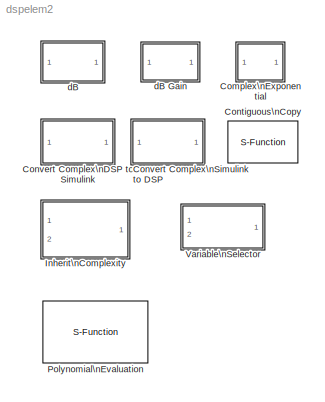
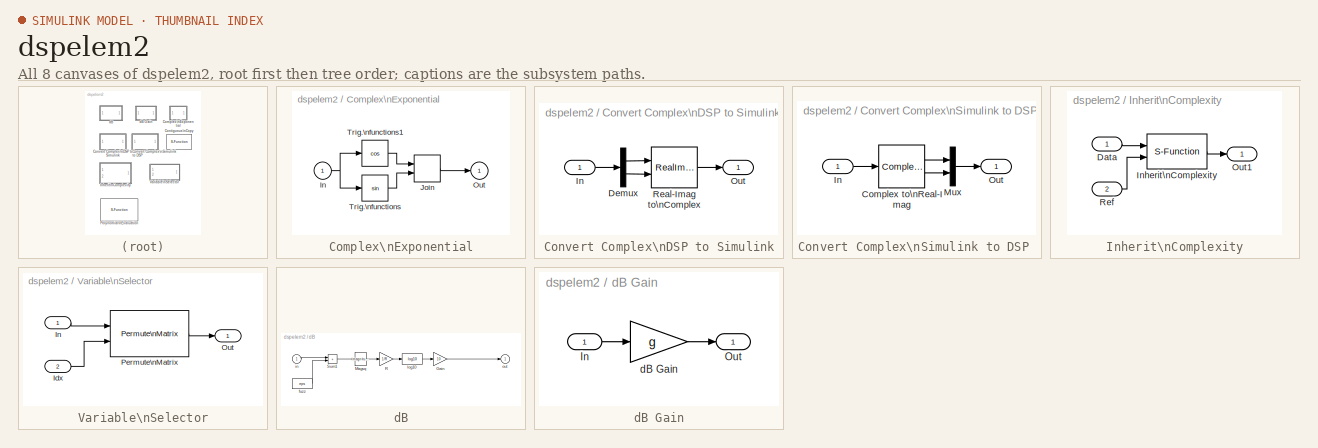
[diagram: thumbnail index - all 8 canvases of the model, root first then tree order]
MODEL dspelem2
KIND library
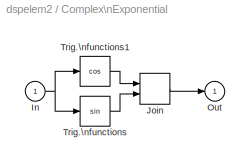
BLOCK [SubSystem] Complex\nExponential
  MaskDescription = Compute the complex exponential function of real inputs via\nEuler's formula, y = cos(x)+jsin(x).
  MaskDisplay = text(0.2, 0.55,'exp(jx)');
  MaskHelp = web(dspbhelp);
  MaskIconFrame = on
  MaskIconOpaque = on
  MaskIconRotate = none
  MaskIconUnits = normalized
  MaskType = Complex Exponential
  Ports = [1, 1, 0, 0, 0]
  ShowPortLabels = on
BLOCK [Inport] Complex\nExponential/In
  DataType = auto
  Interpolate = on
  Port = 1
  PortWidth = -1
  SampleTime = -1
  SignalType = auto
BLOCK [RealImagToComplex] Complex\nExponential/Join
  ConstantPart = 0
  Input = RealAndImag
  Ports = [2, 1, 0, 0, 0]
BLOCK [Outport] Complex\nExponential/Out
  InitialOutput = 0
  OutputWhenDisabled = held
  Port = 1
BLOCK [Trigonometry] Complex\nExponential/Trig.\nfunctions
  Operator = sin
  OutputSignalType = auto
  Ports = [1, 1, 0, 0, 0]
BLOCK [Trigonometry] Complex\nExponential/Trig.\nfunctions1
  Operator = cos
  OutputSignalType = auto
  Ports = [1, 1, 0, 0, 0]
BLOCK [S-Function] Contiguous\nCopy
  FunctionName = sdspcontig
  MaskDescription = Create a contiguous copy of input data.  For use with blocks that only accept contiguous data during simulation or code generation.
  MaskDisplay = disp('Contiguous\\nCopy');
  MaskHelp = web(dspbhelp);
  MaskIconFrame = on
  MaskIconOpaque = on
  MaskIconRotate = none
  MaskIconUnits = autoscale
  MaskType = Contiguous Copy
  PortCounts = []
  Ports = [1, 1, 0, 0, 0]
  SFunctionModules = ''
BLOCK [SubSystem] Convert Complex\nDSP to Simulink
  MaskDescription = Convert old DSP Blockset (prior to V3.0) complex data format to new Simulink complex data type.\n
  MaskDisplay = plot(x,y)\ntext(90,50,'Convert\\nComplex','horiz','right');
  MaskHelp = web(dspbhelp);
  MaskIconFrame = on
  MaskIconOpaque = on
  MaskIconRotate = none
  MaskIconUnits = autoscale
  MaskInitialization = [x,y]=cplxico2([],1);
  MaskType = Convert Complex DSP To Simulink
  Ports = [1, 1, 0, 0, 0]
  ShowPortLabels = on
BLOCK [Demux] Convert Complex\nDSP to Simulink/Demux
  Outputs = 2
  Ports = [1, 2, 0, 0, 0]
BLOCK [Inport] Convert Complex\nDSP to Simulink/In
  DataType = auto
  Interpolate = on
  Port = 1
  PortWidth = -1
  SampleTime = -1
  SignalType = auto
BLOCK [Outport] Convert Complex\nDSP to Simulink/Out
  InitialOutput = []
  OutputWhenDisabled = held
  Port = 1
BLOCK [RealImagToComplex] Convert Complex\nDSP to Simulink/Real-Imag to\nComplex
  ConstantPart = 0
  Input = RealAndImag
  Ports = [2, 1, 0, 0, 0]
BLOCK [SubSystem] Convert Complex\nSimulink to DSP 
  MaskDescription = Convert new Simulink complex data type to old DSP Blockset (prior to V3.0) complex data format.
  MaskDisplay = plot(x,y);\ntext(10,50,'Convert\\nComplex','horiz','left');
  MaskHelp = web(dspbhelp);
  MaskIconFrame = on
  MaskIconOpaque = on
  MaskIconRotate = none
  MaskIconUnits = autoscale
  MaskInitialization = [x,y]=cplxico2(1,[]);
  MaskType = Convert Complex Simulink to DSP
  Ports = [1, 1, 0, 0, 0]
  ShowPortLabels = on
BLOCK [ComplexToRealImag] Convert Complex\nSimulink to DSP /Complex to\nReal-Imag
  Output = RealAndImag
  Ports = [1, 2, 0, 0, 0]
BLOCK [Inport] Convert Complex\nSimulink to DSP /In
  DataType = auto
  Interpolate = on
  Port = 1
  PortWidth = -1
  SampleTime = -1
  SignalType = auto
BLOCK [Mux] Convert Complex\nSimulink to DSP /Mux
  DisplayOption = bar
  Inputs = 2
  Ports = [2, 1, 0, 0, 0]
BLOCK [Outport] Convert Complex\nSimulink to DSP /Out
  InitialOutput = []
  OutputWhenDisabled = held
  Port = 1
BLOCK [SubSystem] Inherit\nComplexity
  MaskDescription = Copy data from the Data input with the complexity of the reference signal. If the data is real and the reference is complex, an all zero imaginary part is created. If the data is complex and the reference is real, the imaginary part of the input is removed.
  MaskDisplay = text(.9,0.5,'Inherit\\nComplexity','horiz','right');
  MaskHelp = web(dspbhelp);
  MaskIconFrame = on
  MaskIconOpaque = off
  MaskIconRotate = none
  MaskIconUnits = normalized
  MaskType = Inherit Complexity
  Ports = [2, 1, 0, 0, 0]
  ShowPortLabels = on
BLOCK [Inport] Inherit\nComplexity/Data
  DataType = auto
  Interpolate = on
  Port = 1
  PortWidth = -1
  SampleTime = -1
  SignalType = auto
BLOCK [S-Function] Inherit\nComplexity/Inherit\nComplexity
  FunctionName = sdspihcplx
  PortCounts = []
  Ports = [2, 1, 0, 0, 0]
  SFunctionModules = ''
BLOCK [Outport] Inherit\nComplexity/Out1
  InitialOutput = []
  OutputWhenDisabled = held
  Port = 1
BLOCK [Inport] Inherit\nComplexity/Ref
  DataType = auto
  Interpolate = on
  Port = 2
  PortWidth = -1
  SampleTime = -1
  SignalType = auto
BLOCK [S-Function] Polynomial\nEvaluation
  FunctionName = sdsppolyval
  MaskCallbackString = dspblkpolyval|
  MaskDescription = Apply specified polynomial function to input.\n\nExample: [1 3 5] represents u^2 + 3u + 5.
  MaskDisplay = port_label(p.in1,   p.i1,  p.i1s);\nport_label(p.in2,   p.i2,  p.i2s);\nport_label(p.out, p.o1, p.o1s);\ndisp(xy.blklabel)
  MaskEnableString = on,off
  MaskHelp = web(dspbhelp);
  MaskIconFrame = on
  MaskIconOpaque = on
  MaskIconRotate = none
  MaskIconUnits = autoscale
  MaskInitialization = [p,xy] = dspblkpolyval('icon');
  MaskPromptString = Use constant coefficients|Constant coefficients:
  MaskSelfModifiable = on
  MaskStyleString = checkbox,edit
  MaskTunableValueString = on,on
  MaskType = Polynomial Evaluation
  MaskValueString = off|[5 4 3 2 1]
  MaskVariables = useConstCoeffs=@1;constCoeffs=@2;
  MaskVisibilityString = on,on
  Parameters = constCoeffs,useConstCoeffs
  PortCounts = []
  Ports = [2, 1, 0, 0, 0]
  SFunctionModules = ''
BLOCK [SubSystem] Variable\nSelector
  MaskCallbackString = dspblkvarsel;||
  MaskDescription = Select or re-order the specified elements of the input vector.\ny=u[Elements].\nElements may be constant (fixed), or may change throughout the simulation (variable).  Elements are 1-based indices, and do not need to be unique.
  MaskDisplay = disp('Selector')
  MaskEnableString = on,off,on
  MaskHelp = web(dspbhelp);
  MaskIconFrame = on
  MaskIconOpaque = off
  MaskIconRotate = none
  MaskIconUnits = autoscale
  MaskInitialization = dspblkvarsel('init');\n
  MaskPromptString = Selector mode:|Elements:|Invalid index:
  MaskSelfModifiable = on
  MaskStyleString = popup(Fixed|Variable),edit,popup(Clip Index|Clip and Warn|Generate Error)
  MaskTunableValueString = off,on,on
  MaskType = Variable Selector
  MaskValueString = Variable|[1 3]|Clip and Warn
  MaskVariables = IdxMode=@1;Elements=@2;errmode=@3;
  MaskVisibilityString = on,on,on
  Ports = [2, 1, 0, 0, 0]
  ShowPortLabels = on
BLOCK [Inport] Variable\nSelector/Idx
  DataType = auto
  Interpolate = on
  Port = 2
  PortWidth = -1
  SampleTime = -1
  SignalType = auto
BLOCK [Inport] Variable\nSelector/In
  DataType = auto
  Interpolate = on
  Port = 1
  PortWidth = -1
  SampleTime = -1
  SignalType = auto
BLOCK [Outport] Variable\nSelector/Out
  InitialOutput = []
  OutputWhenDisabled = held
  Port = 1
BLOCK [Reference] Variable\nSelector/Permute\nMatrix  REF=dspmtrx2/Permute\nMatrix
  Ports = [2, 1, 0, 0, 0]
  SourceBlock = dspmtrx2/Permute\nMatrix
  SourceType = Permute Matrix
  cols = 1
  errmode = Clip and Warn
  mode = Rows
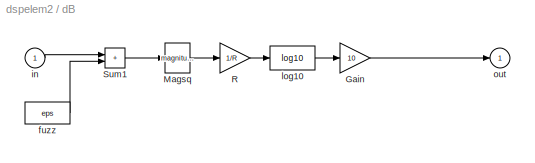
BLOCK [SubSystem] dB
  MaskCallbackString = dspblkdb;|dspblkdb;||
  MaskDescription = Convert input of Watts or Volts to decibels. Voltage inputs are first converted to power relative to the specified load resistance, where P = (V^2)/R.  When converting to dBm, the power is scaled to units of mWatts.
  MaskDisplay = disp(str)\n\n
  MaskEnableString = on,on,on,on
  MaskHelp = web(dspbhelp);
  MaskIconFrame = on
  MaskIconOpaque = on
  MaskIconRotate = none
  MaskIconUnits = autoscale
  MaskInitialization = str = dspblkdb('init');\ndspblkdb('checkparam');\ndspblkdb('update');
  MaskPromptString = Convert to:|Input signal:|Load resistance (ohms):|Add  eps to input to protect against  \"log(0) = -inf\"
  MaskSelfModifiable = on
  MaskStyleString = popup(dB|dBm),popup(Power|Amplitude),edit,checkbox
  MaskTunableValueString = on,on,on,on
  MaskType = dB
  MaskValueString = dB|Amplitude|1|on
  MaskVariables = dBtype=@1;intype=@2;R=@3;fuzz=@4;
  MaskVisibilityString = on,on,on,on
  Ports = [1, 1, 0, 0, 0]
  ShowPortLabels = on
BLOCK [SubSystem] dB Gain
  MaskCallbackString = |
  MaskDescription = Apply a gain specified in dB.
  MaskDisplay = fprintf(s)
  MaskEnableString = on,on
  MaskHelp = web(dspbhelp);
  MaskIconFrame = on
  MaskIconOpaque = on
  MaskIconRotate = none
  MaskIconUnits = autoscale
  MaskInitialization = if isempty(dB),\n  dB = 0; g = 0;\n   s = [&1 ' dB'];\nelse\n  g=10.^(dB/(10*intype));\n  s = sprintf('%g dB\\n(%g)',dB,g);\nend\n
  MaskPromptString = Gain, dB:|Input signal:
  MaskStyleString = edit,popup(Power|Amplitude)
  MaskTunableValueString = on,on
  MaskType = dB Gain
  MaskValueString = -40|Amplitude
  MaskVariables = dB=@1;intype=@2;
  MaskVisibilityString = on,on
  Ports = [1, 1, 0, 0, 0]
  ShowPortLabels = on
BLOCK [Inport] dB Gain/In
  DataType = auto
  Interpolate = on
  Port = 1
  PortWidth = -1
  SampleTime = -1
  SignalType = auto
BLOCK [Outport] dB Gain/Out
  InitialOutput = 0
  OutputWhenDisabled = held
  Port = 1
BLOCK [Gain] dB Gain/dB Gain
  Gain = g
  SaturateOnIntegerOverflow = on
BLOCK [Gain] dB/Gain
  Gain = 10
  SaturateOnIntegerOverflow = on
BLOCK [Math] dB/Magsq
  Operator = magnitude^2
  OutputSignalType = auto
  Ports = [1, 1, 0, 0, 0]
BLOCK [Gain] dB/R
  Gain = 1/R
  SaturateOnIntegerOverflow = on
BLOCK [Sum] dB/Sum1
  IconShape = rectangular
  Inputs = ++
  Ports = [2, 1, 0, 0, 0]
  SaturateOnIntegerOverflow = on
BLOCK [Constant] dB/fuzz
  Value = eps
BLOCK [Inport] dB/in
  DataType = auto
  Interpolate = on
  Port = 1
  PortWidth = -1
  SampleTime = -1
  SignalType = auto
BLOCK [Math] dB/log10
  Operator = log10
  OutputSignalType = auto
  Ports = [1, 1, 0, 0, 0]
BLOCK [Outport] dB/out
  InitialOutput = 0
  OutputWhenDisabled = held
  Port = 1
NET Complex\nExponential/In:1 -> Complex\nExponential/Trig.\nfunctions1:1, Complex\nExponential/Trig.\nfunctions:1
LINE Complex\nExponential/Join:1 -> Complex\nExponential/Out:1
LINE Complex\nExponential/Trig.\nfunctions1:1 -> Complex\nExponential/Join:1
LINE Complex\nExponential/Trig.\nfunctions:1 -> Complex\nExponential/Join:2
LINE Convert Complex\nDSP to Simulink/Demux:1 -> Convert Complex\nDSP to Simulink/Real-Imag to\nComplex:1
LINE Convert Complex\nDSP to Simulink/Demux:2 -> Convert Complex\nDSP to Simulink/Real-Imag to\nComplex:2
LINE Convert Complex\nDSP to Simulink/In:1 -> Convert Complex\nDSP to Simulink/Demux:1
LINE Convert Complex\nDSP to Simulink/Real-Imag to\nComplex:1 -> Convert Complex\nDSP to Simulink/Out:1
LINE Convert Complex\nSimulink to DSP /Complex to\nReal-Imag:1 -> Convert Complex\nSimulink to DSP /Mux:1
LINE Convert Complex\nSimulink to DSP /Complex to\nReal-Imag:2 -> Convert Complex\nSimulink to DSP /Mux:2
LINE Convert Complex\nSimulink to DSP /In:1 -> Convert Complex\nSimulink to DSP /Complex to\nReal-Imag:1
LINE Convert Complex\nSimulink to DSP /Mux:1 -> Convert Complex\nSimulink to DSP /Out:1
LINE Inherit\nComplexity/Data:1 -> Inherit\nComplexity/Inherit\nComplexity:1
LINE Inherit\nComplexity/Inherit\nComplexity:1 -> Inherit\nComplexity/Out1:1
LINE Inherit\nComplexity/Ref:1 -> Inherit\nComplexity/Inherit\nComplexity:2
LINE Variable\nSelector/Idx:1 -> Variable\nSelector/Permute\nMatrix:2
LINE Variable\nSelector/In:1 -> Variable\nSelector/Permute\nMatrix:1
LINE Variable\nSelector/Permute\nMatrix:1 -> Variable\nSelector/Out:1
LINE dB Gain/In:1 -> dB Gain/dB Gain:1
LINE dB Gain/dB Gain:1 -> dB Gain/Out:1
LINE dB/Gain:1 -> dB/out:1
LINE dB/Magsq:1 -> dB/R:1
LINE dB/R:1 -> dB/log10:1
LINE dB/Sum1:1 -> dB/Magsq:1
LINE dB/fuzz:1 -> dB/Sum1:2
LINE dB/in:1 -> dB/Sum1:1
LINE dB/log10:1 -> dB/Gain:1
note: NET lines group one-source signal fan-out (src -> all destinations, sorted); 1:1 wires keep LINE
